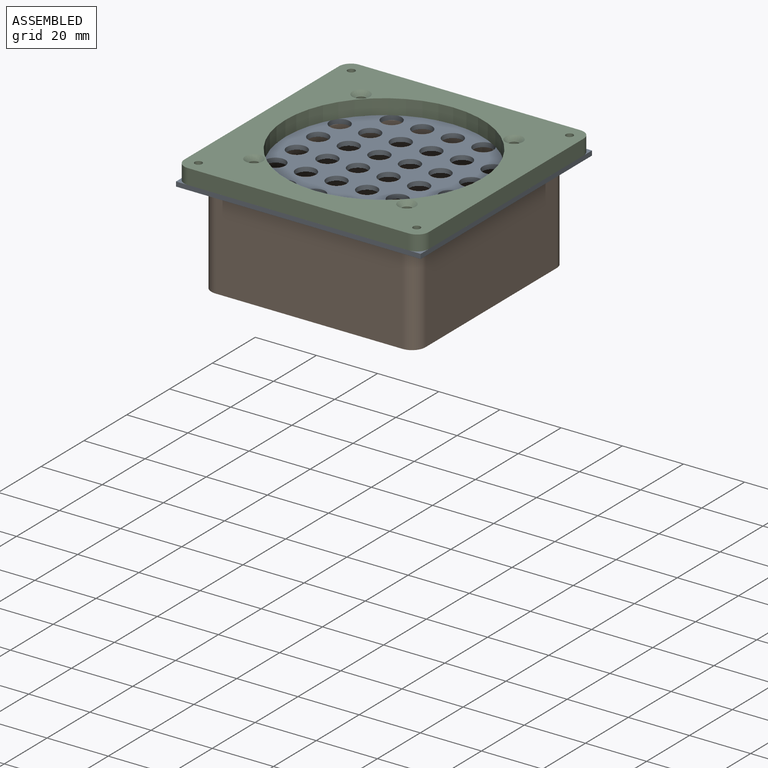
[diagram: assembled view]
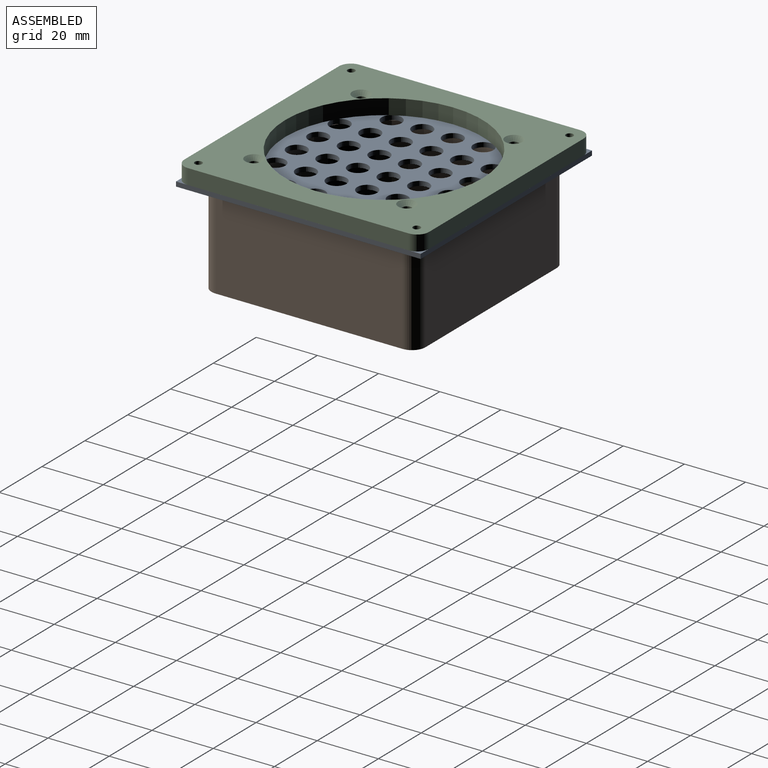
[diagram: assembled view, second angle]
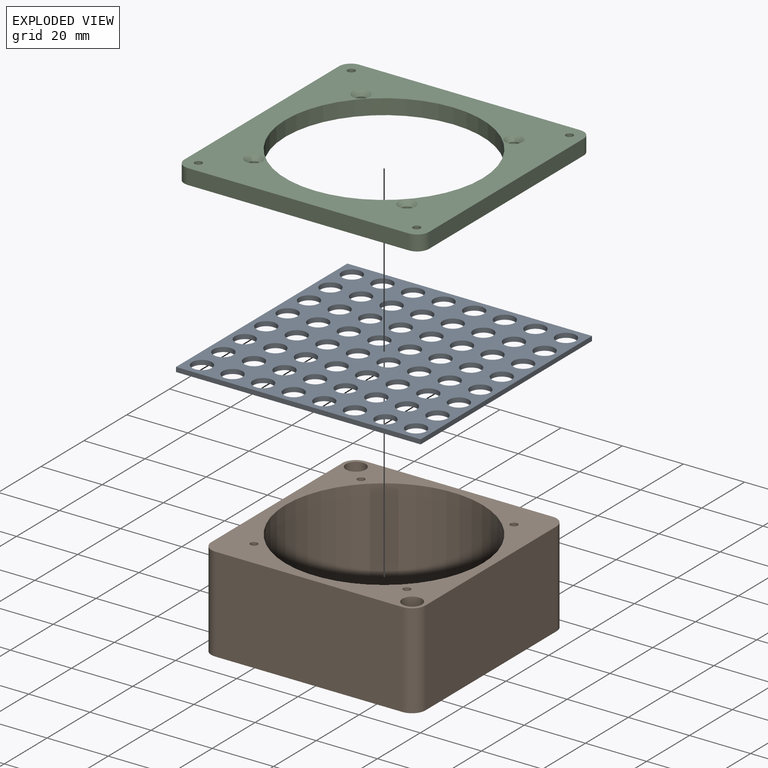
[diagram: exploded view]
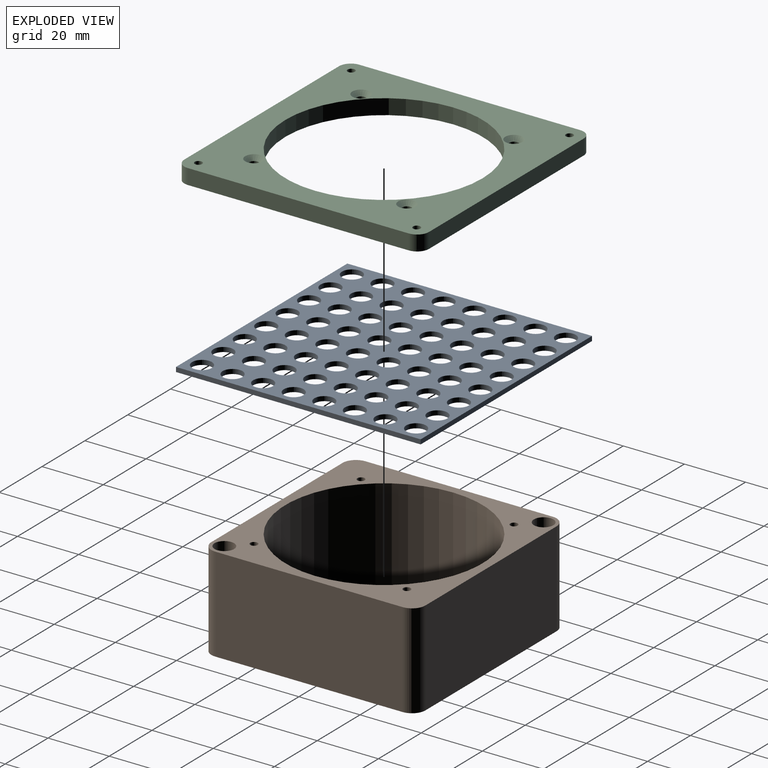
[diagram: exploded view, second angle]
ASSEMBLY  parts=3 mates=2
PART A: 70 faces, bbox 80x80x1.5 mm
  f0: plane 80x1.5mm, normal (-1,0,0), area 120mm2, adj f1,f67,f68,f69
  f1: plane 80x1.5mm, normal (0,-1,0), area 120mm2, adj f0,f2,f68,f69
  f2: plane 80x1.5mm, normal (1,0,0), area 120mm2, adj f1,f67,f68,f69
  f3: cylinder r=3.25mm len=6.5mm, axis (0,0,-1), area 30.6mm2, adj f68,f69
  f4: cylinder r=3.25mm len=6.5mm, axis (0,0,-1), area 30.6mm2, adj f68,f69
  f5: cylinder r=3.25mm len=6.5mm, axis (0,0,-1), area 30.6mm2, adj f68,f69
  f6: cylinder r=3.25mm len=6.5mm, axis (0,0,-1), area 30.6mm2, adj f68,f69
  f7: cylinder r=3.25mm len=6.5mm, axis (0,0,-1), area 30.6mm2, adj f68,f69
  f8: cylinder r=3.25mm len=6.5mm, axis (0,0,-1), area 30.6mm2, adj f68,f69
  f9: cylinder r=3.25mm len=6.5mm, axis (0,0,-1), area 30.6mm2, adj f68,f69
  f10: cylinder r=3.25mm len=6.5mm, axis (0,0,-1), area 30.6mm2, adj f68,f69
  f11: cylinder r=3.25mm len=6.5mm, axis (0,0,-1), area 30.6mm2, adj f68,f69
  f12: cylinder r=3.25mm len=6.5mm, axis (0,0,-1), area 30.6mm2, adj f68,f69
  f13: cylinder r=3.25mm len=6.5mm, axis (0,0,-1), area 30.6mm2, adj f68,f69
  f14: cylinder r=3.25mm len=6.5mm, axis (0,0,-1), area 30.6mm2, adj f68,f69
  f15: cylinder r=3.25mm len=6.5mm, axis (0,0,-1), area 30.6mm2, adj f68,f69
  f16: cylinder r=3.25mm len=6.5mm, axis (0,0,-1), area 30.6mm2, adj f68,f69
  f17: cylinder r=3.25mm len=6.5mm, axis (0,0,-1), area 30.6mm2, adj f68,f69
  f18: cylinder r=3.25mm len=6.5mm, axis (0,0,-1), area 30.6mm2, adj f68,f69
  f19: cylinder r=3.25mm len=6.5mm, axis (0,0,-1), area 30.6mm2, adj f68,f69
  f20: cylinder r=3.25mm len=6.5mm, axis (0,0,-1), area 30.6mm2, adj f68,f69
  f21: cylinder r=3.25mm len=6.5mm, axis (0,0,-1), area 30.6mm2, adj f68,f69
  f22: cylinder r=3.25mm len=6.5mm, axis (0,0,-1), area 30.6mm2, adj f68,f69
  f23: cylinder r=3.25mm len=6.5mm, axis (0,0,-1), area 30.6mm2, adj f68,f69
  f24: cylinder r=3.25mm len=6.5mm, axis (0,0,-1), area 30.6mm2, adj f68,f69
  f25: cylinder r=3.25mm len=6.5mm, axis (0,0,-1), area 30.6mm2, adj f68,f69
  f26: cylinder r=3.25mm len=6.5mm, axis (0,0,-1), area 30.6mm2, adj f68,f69
  f27: cylinder r=3.25mm len=6.5mm, axis (0,0,-1), area 30.6mm2, adj f68,f69
  f28: cylinder r=3.25mm len=6.5mm, axis (0,0,-1), area 30.6mm2, adj f68,f69
  f29: cylinder r=3.25mm len=6.5mm, axis (0,0,-1), area 30.6mm2, adj f68,f69
  f30: cylinder r=3.25mm len=6.5mm, axis (0,0,-1), area 30.6mm2, adj f68,f69
  f31: cylinder r=3.25mm len=6.5mm, axis (0,0,-1), area 30.6mm2, adj f68,f69
  f32: cylinder r=3.25mm len=6.5mm, axis (0,0,-1), area 30.6mm2, adj f68,f69
  f33: cylinder r=3.25mm len=6.5mm, axis (0,0,-1), area 30.6mm2, adj f68,f69
  f34: cylinder r=3.25mm len=6.5mm, axis (0,0,-1), area 30.6mm2, adj f68,f69
  f35: cylinder r=3.25mm len=6.5mm, axis (0,0,-1), area 30.6mm2, adj f68,f69
  f36: cylinder r=3.25mm len=6.5mm, axis (0,0,-1), area 30.6mm2, adj f68,f69
  f37: cylinder r=3.25mm len=6.5mm, axis (0,0,-1), area 30.6mm2, adj f68,f69
  f38: cylinder r=3.25mm len=6.5mm, axis (0,0,-1), area 30.6mm2, adj f68,f69
  f39: cylinder r=3.25mm len=6.5mm, axis (0,0,-1), area 30.6mm2, adj f68,f69
  f40: cylinder r=3.25mm len=6.5mm, axis (0,0,-1), area 30.6mm2, adj f68,f69
  f41: cylinder r=3.25mm len=6.5mm, axis (0,0,-1), area 30.6mm2, adj f68,f69
  f42: cylinder r=3.25mm len=6.5mm, axis (0,0,-1), area 30.6mm2, adj f68,f69
  f43: cylinder r=3.25mm len=6.5mm, axis (0,0,-1), area 30.6mm2, adj f68,f69
  f44: cylinder r=3.25mm len=6.5mm, axis (0,0,-1), area 30.6mm2, adj f68,f69
  f45: cylinder r=3.25mm len=6.5mm, axis (0,0,-1), area 30.6mm2, adj f68,f69
  f46: cylinder r=3.25mm len=6.5mm, axis (0,0,-1), area 30.6mm2, adj f68,f69
  f47: cylinder r=3.25mm len=6.5mm, axis (0,0,-1), area 30.6mm2, adj f68,f69
  f48: cylinder r=3.25mm len=6.5mm, axis (0,0,-1), area 30.6mm2, adj f68,f69
  f49: cylinder r=3.25mm len=6.5mm, axis (0,0,-1), area 30.6mm2, adj f68,f69
  f50: cylinder r=3.25mm len=6.5mm, axis (0,0,-1), area 30.6mm2, adj f68,f69
  f51: cylinder r=3.25mm len=6.5mm, axis (0,0,-1), area 30.6mm2, adj f68,f69
  f52: cylinder r=3.25mm len=6.5mm, axis (0,0,-1), area 30.6mm2, adj f68,f69
  f53: cylinder r=3.25mm len=6.5mm, axis (0,0,-1), area 30.6mm2, adj f68,f69
  f54: cylinder r=3.25mm len=6.5mm, axis (0,0,-1), area 30.6mm2, adj f68,f69
  f55: cylinder r=3.25mm len=6.5mm, axis (0,0,-1), area 30.6mm2, adj f68,f69
  f56: cylinder r=3.25mm len=6.5mm, axis (0,0,-1), area 30.6mm2, adj f68,f69
  f57: cylinder r=3.25mm len=6.5mm, axis (0,0,-1), area 30.6mm2, adj f68,f69
  f58: cylinder r=3.25mm len=6.5mm, axis (0,0,-1), area 30.6mm2, adj f68,f69
  f59: cylinder r=3.25mm len=6.5mm, axis (0,0,-1), area 30.6mm2, adj f68,f69
  f60: cylinder r=3.25mm len=6.5mm, axis (0,0,-1), area 30.6mm2, adj f68,f69
  f61: cylinder r=3.25mm len=6.5mm, axis (0,0,-1), area 30.6mm2, adj f68,f69
  f62: cylinder r=3.25mm len=6.5mm, axis (0,0,-1), area 30.6mm2, adj f68,f69
  f63: cylinder r=3.25mm len=6.5mm, axis (0,0,-1), area 30.6mm2, adj f68,f69
  f64: cylinder r=3.25mm len=6.5mm, axis (0,0,-1), area 30.6mm2, adj f68,f69
  f65: cylinder r=3.25mm len=6.5mm, axis (0,0,-1), area 30.6mm2, adj f68,f69
  f66: cylinder r=3.25mm len=6.5mm, axis (0,0,-1), area 30.6mm2, adj f68,f69
  f67: plane 80x1.5mm, normal (0,1,0), area 120mm2, adj f0,f2,f68,f69
  f68: plane 80x80mm, normal (0,0,1), area 4276.3mm2, adj f0,f1,f2,f3,f4,f5,f6,f7
  f69: plane 80x80mm, normal (0,0,-1), area 4276.3mm2, adj f0,f1,f2,f3,f4,f5,f6,f7
PART B: 25 faces, bbox 70x70x31 mm
  f0: plane 61.2x31mm, normal (0,-1,0), area 1897.2mm2, adj f7,f8,f21,f24
  f1: plane 61.2x31mm, normal (1,0,0), area 1897.2mm2, adj f7,f8,f21,f22
  f2: plane 61.2x31mm, normal (0,1,0), area 1897.2mm2, adj f7,f8,f22,f23
  f3: cylinder r=32.25mm len=64.5mm, axis (0,0,-1), area 6281.6mm2, adj f7,f8
  f4: cylinder r=3.2mm len=26mm, axis (0,0,-1), area 522.8mm2, adj f7,f10
  f5: cylinder r=3.2mm len=26mm, axis (0,0,-1), area 522.8mm2, adj f7,f12
  f6: plane 61.2x31mm, normal (-1,0,0), area 1897.2mm2, adj f7,f8,f23,f24
  f7: plane 70x70mm, normal (0,0,1), area 1533.5mm2, adj f0,f1,f2,f3,f4,f5,f6,f13
  f8: plane 70x70mm, normal (0,0,-1), area 1601.8mm2, adj f0,f1,f2,f3,f6,f9,f11,f21
  f9: cylinder r=1.5mm len=5mm, axis (0,0,-1), area 47.1mm2, adj f8,f10
  f10: plane 6.4x6.4mm, normal (0,0,1), area 25.1mm2, adj f4,f9
  f11: cylinder r=1.5mm len=5mm, axis (0,0,-1), area 47.1mm2, adj f8,f12
  f12: plane 6.4x6.4mm, normal (0,0,1), area 25.1mm2, adj f5,f11
  f13: cylinder r=1.2mm len=8mm, axis (0,0,1), area 60.3mm2, adj f7,f14
  f14: cone r=0mm half-angle=59deg, axis (0,0,1), area 5.3mm2, adj f13
  f15: cylinder r=1.2mm len=8mm, axis (0,0,1), area 60.3mm2, adj f7,f16
  f16: cone r=0mm half-angle=59deg, axis (0,0,1), area 5.3mm2, adj f15
  f17: cylinder r=1.2mm len=8mm, axis (0,0,1), area 60.3mm2, adj f7,f18
  f18: cone r=0mm half-angle=59deg, axis (0,0,1), area 5.3mm2, adj f17
  f19: cylinder r=1.2mm len=8mm, axis (0,0,1), area 60.3mm2, adj f7,f20
  f20: cone r=0mm half-angle=59deg, axis (0,0,1), area 5.3mm2, adj f19
  f21: cylinder r=4.4mm len=31mm, axis (0,0,-1), area 214.3mm2, adj f0,f1,f7,f8
  f22: cylinder r=4.4mm len=31mm, axis (0,0,1), area 214.3mm2, adj f1,f2,f7,f8
  f23: cylinder r=4.4mm len=31mm, axis (0,0,-1), area 214.3mm2, adj f2,f6,f7,f8
  f24: cylinder r=4.4mm len=31mm, axis (0,0,1), area 214.3mm2, adj f0,f6,f7,f8
PART C: 27 faces, bbox 80x80x5 mm
  f0: plane 72.2x5mm, normal (0,-1,0), area 361mm2, adj f5,f6,f23,f26
  f1: plane 72.2x5mm, normal (1,0,0), area 361mm2, adj f5,f6,f23,f24
  f2: plane 72.2x5mm, normal (0,1,0), area 361mm2, adj f5,f6,f24,f25
  f3: cylinder r=32.25mm len=64.5mm, axis (0,0,-1), area 1013.2mm2, adj f5,f6
  f4: plane 72.2x5mm, normal (-1,0,0), area 361mm2, adj f5,f6,f25,f26
  f5: plane 80x80mm, normal (0,0,1), area 2997.5mm2, adj f0,f1,f2,f3,f4,f7,f9,f11
  f6: plane 80x80mm, normal (0,0,-1), area 3091.2mm2, adj f0,f1,f2,f3,f4,f15,f17,f19
  f7: cylinder r=1.2mm len=4mm, axis (0,0,1), area 30.2mm2, adj f5,f8
  f8: cone r=0mm half-angle=59deg, axis (0,0,1), area 5.3mm2, adj f7
  f9: cylinder r=1.2mm len=4mm, axis (0,0,1), area 30.2mm2, adj f5,f10
  f10: cone r=0mm half-angle=59deg, axis (0,0,1), area 5.3mm2, adj f9
  f11: cylinder r=1.2mm len=4mm, axis (0,0,1), area 30.2mm2, adj f5,f12
  f12: cone r=0mm half-angle=59deg, axis (0,0,1), area 5.3mm2, adj f11
  f13: cylinder r=1.2mm len=4mm, axis (0,0,1), area 30.2mm2, adj f5,f14
  f14: cone r=0mm half-angle=59deg, axis (0,0,1), area 5.3mm2, adj f13
  f15: cylinder r=1.5mm len=3.63mm, axis (0,0,1), area 34.2mm2, adj f6,f16
  f16: cone r=1.5mm half-angle=45deg, axis (0,0,1), area 26.7mm2, adj f5,f15
  f17: cylinder r=1.5mm len=3.63mm, axis (0,0,1), area 34.2mm2, adj f6,f18
  f18: cone r=1.5mm half-angle=45deg, axis (0,0,1), area 26.7mm2, adj f5,f17
  f19: cylinder r=1.5mm len=3.63mm, axis (0,0,1), area 34.2mm2, adj f6,f20
  f20: cone r=1.5mm half-angle=45deg, axis (0,0,1), area 26.7mm2, adj f5,f19
  f21: cylinder r=1.5mm len=3.63mm, axis (0,0,1), area 34.2mm2, adj f6,f22
  f22: cone r=1.5mm half-angle=45deg, axis (0,0,1), area 26.7mm2, adj f5,f21
  f23: cylinder r=3.9mm len=5mm, axis (0,0,-1), area 30.6mm2, adj f0,f1,f5,f6
  f24: cylinder r=3.9mm len=5mm, axis (0,0,1), area 30.6mm2, adj f1,f2,f5,f6
  f25: cylinder r=3.9mm len=5mm, axis (0,0,-1), area 30.6mm2, adj f2,f4,f5,f6
  f26: cylinder r=3.9mm len=5mm, axis (0,0,1), area 30.6mm2, adj f0,f4,f5,f6
PLACE A t=(0.17,-0.05,15.39)mm
PLACE B t=(0.17,-0.05,-15.61)mm fixed
PLACE C t=(0.17,-0.05,16.89)mm
MATE fastened C.f15 <-> A.f12  axis (0,0,-1) through (-24.83,24.95,16.89)mm
MATE fastened A.f17 <-> B.f13  axis (0,0,-1) through (-24.83,-25.05,15.39)mm
